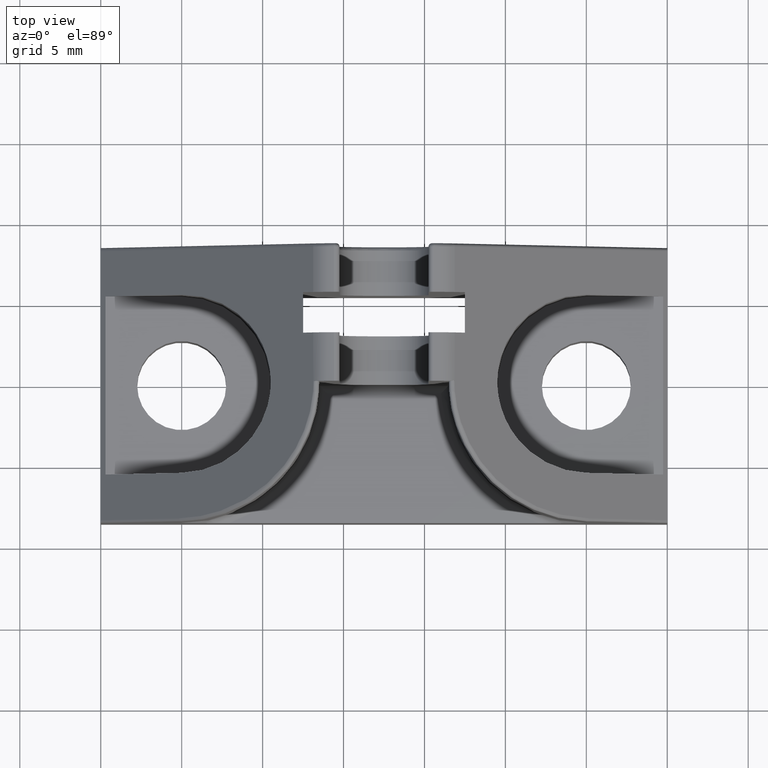
[diagram: clean part render]
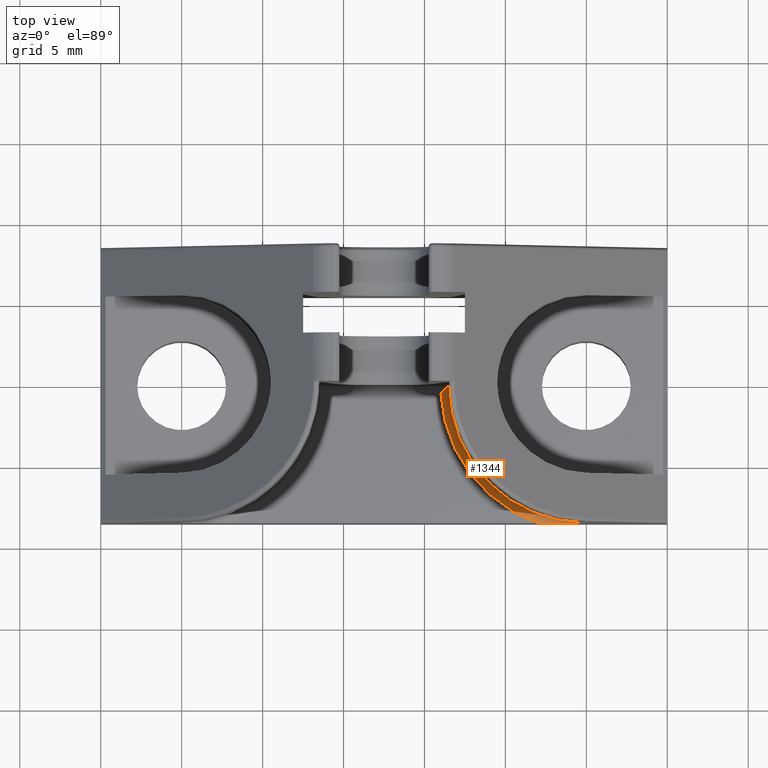
[diagram: same view with one face highlighted and labeled with its STEP entity id]
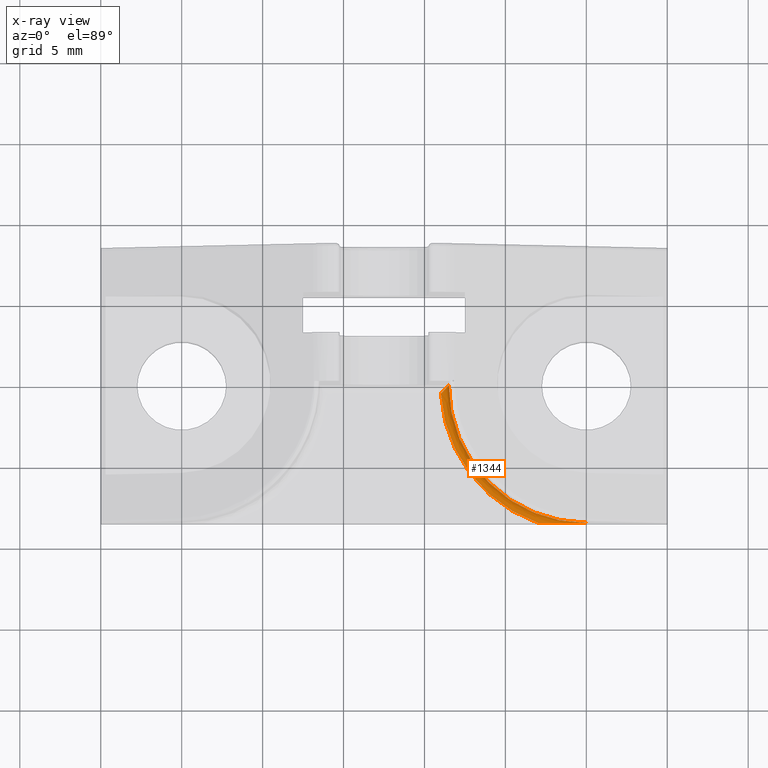
[diagram: x-ray of the same camera — body ghosted, the highlighted face saturated]
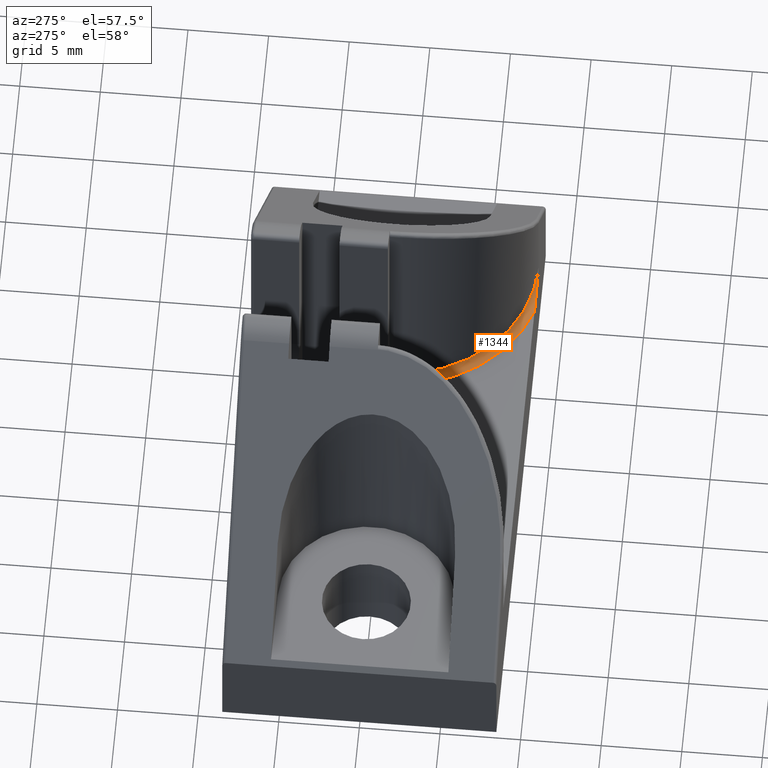
[diagram: same view with one face highlighted and labeled with its STEP entity id]
A machine part, top view. The second image highlights one B-rep face of the part: STEP entity #1344.
The next image is the same camera in x-ray: the body ghosted, the highlighted face saturated — about 0% of this face is hidden behind the body in this view.
A second angle (auxiliary view) of the same face is appended — the face is thin or edge-on in the first view.
In plain terms, the highlighted face is a freeform B-spline surface patch.
Its self-contained STEP definition (entity closure, byte-faithful):
#25=B_SPLINE_CURVE_WITH_KNOTS('',3,(#3533,#3534,#3535,#3536,#3537,#3538,
#3539,#3540,#3541,#3542,#3543,#3544,#3545,#3546),.UNSPECIFIED.,.F.,.F.,
(4,2,2,2,2,2,4),(0.,0.0121641494169023,0.024956855737419,0.0449819690582502,
0.0632214763117371,0.0822565105837484,0.0826002543865614),.UNSPECIFIED.);
#26=B_SPLINE_CURVE_WITH_KNOTS('',3,(#3550,#3551,#3552,#3553,#3554,#3555,
#3556,#3557),.UNSPECIFIED.,.F.,.F.,(4,2,2,4),(1.6276811354298E-7,0.155861946035354,
0.347908688580062,0.349710646436989),.UNSPECIFIED.);
#40=B_SPLINE_SURFACE_WITH_KNOTS('',3,3,((#3454,#3455,#3456,#3457,#3458,
#3459,#3460,#3461,#3462,#3463,#3464),(#3465,#3466,#3467,#3468,#3469,#3470,
#3471,#3472,#3473,#3474,#3475),(#3476,#3477,#3478,#3479,#3480,#3481,#3482,
#3483,#3484,#3485,#3486),(#3487,#3488,#3489,#3490,#3491,#3492,#3493,#3494,
#3495,#3496,#3497),(#3498,#3499,#3500,#3501,#3502,#3503,#3504,#3505,#3506,
#3507,#3508),(#3509,#3510,#3511,#3512,#3513,#3514,#3515,#3516,#3517,#3518,
#3519),(#3520,#3521,#3522,#3523,#3524,#3525,#3526,#3527,#3528,#3529,#3530)),
 .UNSPECIFIED.,.F.,.F.,.F.,(4,1,1,1,4),(4,1,1,1,1,1,1,1,4),(-0.000161642979281006,
0.195090322016129,0.390180644032257,0.585270966048386,0.780361288064515),
(0.,1.70521702967249,3.41043405934499,5.11565108901749,6.82086811868998,
8.52608514836247,10.231302178035,11.9365192077075,13.64173623738),
 .UNSPECIFIED.);
#135=FACE_OUTER_BOUND('',#219,.T.);
#219=EDGE_LOOP('',(#1081,#1082,#1083,#1084));
#300=CIRCLE('',#1484,8.9998999999657);
#301=CIRCLE('',#1485,8.49989999996569);
#622=VERTEX_POINT('',#3531);
#623=VERTEX_POINT('',#3532);
#624=VERTEX_POINT('',#3547);
#625=VERTEX_POINT('',#3549);
#789=EDGE_CURVE('',#622,#623,#25,.T.);
#790=EDGE_CURVE('',#624,#623,#300,.T.);
#791=EDGE_CURVE('',#624,#625,#26,.T.);
#792=EDGE_CURVE('',#625,#622,#301,.T.);
#1081=ORIENTED_EDGE('',*,*,#789,.T.);
#1082=ORIENTED_EDGE('',*,*,#790,.F.);
#1083=ORIENTED_EDGE('',*,*,#791,.T.);
#1084=ORIENTED_EDGE('',*,*,#792,.T.);
#1344=ADVANCED_FACE('',(#135),#40,.T.);
#1484=AXIS2_PLACEMENT_3D('',#3548,#1783,#1784);
#1485=AXIS2_PLACEMENT_3D('',#3558,#1785,#1786);
#1783=DIRECTION('center_axis',(0.,0.,-1.));
#1784=DIRECTION('ref_axis',(-0.999999999982699,5.882422158E-6,0.));
#1785=DIRECTION('center_axis',(0.,0.,-1.));
#1786=DIRECTION('ref_axis',(-0.999999999982699,5.882422158E-6,0.));
#3454=CARTESIAN_POINT('Ctrl Pts',(5.53318938835607E-16,-9.00006164147568,
5.99999808002071));
#3455=CARTESIAN_POINT('Ctrl Pts',(-0.588109065226064,-9.00006164147568,
5.99999808002071));
#3456=CARTESIAN_POINT('Ctrl Pts',(-1.76758660741093,-8.88402865972485,5.99999808002071));
#3457=CARTESIAN_POINT('Ctrl Pts',(-3.46627176269268,-8.36856736644411,5.99999808002071));
#3458=CARTESIAN_POINT('Ctrl Pts',(-5.03244659280965,-7.53150793570824,5.99999808002071));
#3459=CARTESIAN_POINT('Ctrl Pts',(-6.40503897061588,-6.40500129358354,5.99999808002071));
#3460=CARTESIAN_POINT('Ctrl Pts',(-7.53153753855328,-5.03240228921342,5.99999808002071));
#3461=CARTESIAN_POINT('Ctrl Pts',(-8.36858775637314,-3.4662225351866,5.99999808002071));
#3462=CARTESIAN_POINT('Ctrl Pts',(-8.88403905726178,-1.76753434777331,5.99999808002071));
#3463=CARTESIAN_POINT('Ctrl Pts',(-9.00006510082577,-0.58805612305387,5.99999808002071));
#3464=CARTESIAN_POINT('Ctrl Pts',(-9.00006164131997,5.29421620205991E-5,
5.99999808002071));
#3465=CARTESIAN_POINT('Ctrl Pts',(5.49317199081962E-16,-8.93497883768313,
5.99997650300959));
#3466=CARTESIAN_POINT('Ctrl Pts',(-0.583856229142772,-8.93497883768313,
5.99997650300959));
#3467=CARTESIAN_POINT('Ctrl Pts',(-1.75480452913868,-8.81978493371706,5.99997650300959));
#3468=CARTESIAN_POINT('Ctrl Pts',(-3.44120585825671,-8.30805113337466,5.99997650300959));
#3469=CARTESIAN_POINT('Ctrl Pts',(-4.99605509381292,-7.47704479170234,5.99997650300959));
#3470=CARTESIAN_POINT('Ctrl Pts',(-6.35872174399966,-6.35868433942399,5.99997650300959));
#3471=CARTESIAN_POINT('Ctrl Pts',(-7.47707418047816,-4.99601111059252,5.99997650300959));
#3472=CARTESIAN_POINT('Ctrl Pts',(-8.3080713758565,-3.44115698673311,5.99997650300959));
#3473=CARTESIAN_POINT('Ctrl Pts',(-8.81979525606551,-1.75475264740999,5.99997650300959));
#3474=CARTESIAN_POINT('Ctrl Pts',(-8.93498227201737,-0.583803669815177,
5.99997650300959));
#3475=CARTESIAN_POINT('Ctrl Pts',(-8.93497883752855,5.25593174938128E-5,
5.99997650300959));
#3476=CARTESIAN_POINT('Ctrl Pts',(5.41228322719734E-16,-8.80343199115925,
6.02598670904733));
#3477=CARTESIAN_POINT('Ctrl Pts',(-0.575260299912012,-8.80343199115925,
6.02598670904733));
#3478=CARTESIAN_POINT('Ctrl Pts',(-1.72896910117992,-8.68993405033767,6.02598670904733));
#3479=CARTESIAN_POINT('Ctrl Pts',(-3.39054208085816,-8.18573434368676,6.02598670904733));
#3480=CARTESIAN_POINT('Ctrl Pts',(-4.92249976653236,-7.3669626436039,6.02598670904733));
#3481=CARTESIAN_POINT('Ctrl Pts',(-6.2651043098074,-6.26506745592739,6.02598670904733));
#3482=CARTESIAN_POINT('Ctrl Pts',(-7.36699159969814,-4.9224564308629,6.02598670904733));
#3483=CARTESIAN_POINT('Ctrl Pts',(-8.185754288145,-3.39049392885442,6.02598670904733));
#3484=CARTESIAN_POINT('Ctrl Pts',(-8.68994422071347,-1.72891798328939,6.02598670904733));
#3485=CARTESIAN_POINT('Ctrl Pts',(-8.80343537493087,-0.575208514398652,
6.02598670904733));
#3486=CARTESIAN_POINT('Ctrl Pts',(-8.80343199100694,5.1785503408384E-5,
6.02598670904733));
#3487=CARTESIAN_POINT('Ctrl Pts',(5.310051E-16,-8.63719354422922,6.13729159749012));
#3488=CARTESIAN_POINT('Ctrl Pts',(-0.564397447909076,-8.63719354422922,
6.13729159749012));
#3489=CARTESIAN_POINT('Ctrl Pts',(-1.69632034118963,-8.52583882680401,6.13729159749012));
#3490=CARTESIAN_POINT('Ctrl Pts',(-3.32651722664916,-8.03116010881531,6.13729159749012));
#3491=CARTESIAN_POINT('Ctrl Pts',(-4.82954639141416,-7.22784957614406,6.13729159749012));
#3492=CARTESIAN_POINT('Ctrl Pts',(-6.14679803887091,-6.14676188091628,6.13729159749011));
#3493=CARTESIAN_POINT('Ctrl Pts',(-7.2278779854497,-4.8295038740681,6.13729159749012));
#3494=CARTESIAN_POINT('Ctrl Pts',(-8.03117967665501,-3.32646998391744,6.13729159749011));
#3495=CARTESIAN_POINT('Ctrl Pts',(-8.52584880512886,-1.69627018857705,6.13729159749011));
#3496=CARTESIAN_POINT('Ctrl Pts',(-8.63719686410383,-0.564346640280627,
6.13729159749012));
#3497=CARTESIAN_POINT('Ctrl Pts',(-8.63719354407978,5.0807618685E-5,6.13729159749012));
#3498=CARTESIAN_POINT('Ctrl Pts',(5.241609E-16,-8.52591938802358,6.30348414455495));
#3499=CARTESIAN_POINT('Ctrl Pts',(-0.5571262377111,-8.52591938802358,6.30348414455496));
#3500=CARTESIAN_POINT('Ctrl Pts',(-1.67446641217279,-8.41599926878789,6.30348414455496));
#3501=CARTESIAN_POINT('Ctrl Pts',(-3.28366124621948,-7.92769356497969,6.30348414455495));
#3502=CARTESIAN_POINT('Ctrl Pts',(-4.76732667886417,-7.13473219274305,6.30348414455496));
#3503=CARTESIAN_POINT('Ctrl Pts',(-6.06760799159001,-6.0675722994633,6.30348414455495));
#3504=CARTESIAN_POINT('Ctrl Pts',(-7.1347602360477,-4.76728470927494,6.30348414455496));
#3505=CARTESIAN_POINT('Ctrl Pts',(-7.9277128807242,-3.28361461212238,6.30348414455495));
#3506=CARTESIAN_POINT('Ctrl Pts',(-8.41600911856061,-1.67441690568324,6.30348414455495));
#3507=CARTESIAN_POINT('Ctrl Pts',(-8.5259226651278,-0.557076084644338,6.30348414455496));
#3508=CARTESIAN_POINT('Ctrl Pts',(-8.52591938787607,5.0153057123E-5,6.30348414455496));
#3509=CARTESIAN_POINT('Ctrl Pts',(5.225592E-16,-8.49989999996569,6.43496794588788));
#3510=CARTESIAN_POINT('Ctrl Pts',(-0.555426000690726,-8.49989999996569,
6.43496794588788));
#3511=CARTESIAN_POINT('Ctrl Pts',(-1.66935627807635,-8.39031533478576,6.43496794588788));
#3512=CARTESIAN_POINT('Ctrl Pts',(-3.27364017373127,-7.90349984159532,6.43496794588788));
#3513=CARTESIAN_POINT('Ctrl Pts',(-4.75277775842394,-7.11295842769046,6.43496794588788));
#3514=CARTESIAN_POINT('Ctrl Pts',(-6.04909087458113,-6.0490552913796,6.43496794588788));
#3515=CARTESIAN_POINT('Ctrl Pts',(-7.1129863854126,-4.75273591691745,6.43496794588788));
#3516=CARTESIAN_POINT('Ctrl Pts',(-7.90351909839207,-3.27359368195204,6.43496794588788));
#3517=CARTESIAN_POINT('Ctrl Pts',(-8.39032515449895,-1.66930692267063,6.43496794588788));
#3518=CARTESIAN_POINT('Ctrl Pts',(-8.49990326706885,-0.555376000681019,
6.43496794588788));
#3519=CARTESIAN_POINT('Ctrl Pts',(-8.49989999981863,5.0000000098E-5,6.43496794588788));
#3520=CARTESIAN_POINT('Ctrl Pts',(5.225583E-16,-8.49989999996569,6.49999805322659));
#3521=CARTESIAN_POINT('Ctrl Pts',(-0.555426000690726,-8.49989999996569,
6.49999805322659));
#3522=CARTESIAN_POINT('Ctrl Pts',(-1.66935627807635,-8.39031533478576,6.49999805322659));
#3523=CARTESIAN_POINT('Ctrl Pts',(-3.27364017373127,-7.90349984159532,6.49999805322659));
#3524=CARTESIAN_POINT('Ctrl Pts',(-4.75277775842394,-7.11295842769046,6.49999805322659));
#3525=CARTESIAN_POINT('Ctrl Pts',(-6.04909087458113,-6.0490552913796,6.49999805322659));
#3526=CARTESIAN_POINT('Ctrl Pts',(-7.1129863854126,-4.75273591691745,6.49999805322659));
#3527=CARTESIAN_POINT('Ctrl Pts',(-7.90351909839207,-3.27359368195204,6.49999805322659));
#3528=CARTESIAN_POINT('Ctrl Pts',(-8.39032515449895,-1.66930692267063,6.49999805322659));
#3529=CARTESIAN_POINT('Ctrl Pts',(-8.49990326706885,-0.555376000681019,
6.49999805322659));
#3530=CARTESIAN_POINT('Ctrl Pts',(-8.49989999981863,5.0000000098E-5,6.49999805322659));
#3531=CARTESIAN_POINT('',(-8.49989999981881,5.0000000102E-5,6.49999805322659));
#3532=CARTESIAN_POINT('',(-8.98597869743478,-0.499950673217698,5.99999805322659));
#3533=CARTESIAN_POINT('Ctrl Pts',(-8.49989999981863,5.00000001033649E-5,
6.49999805322659));
#3534=CARTESIAN_POINT('Ctrl Pts',(-8.49989999981863,5.00000001033624E-5,
6.45945088850358));
#3535=CARTESIAN_POINT('Ctrl Pts',(-8.50493345228377,-0.00489767846461354,
6.41948632611635));
#3536=CARTESIAN_POINT('Ctrl Pts',(-8.52412612166341,-0.0241551927090525,
6.34080159299644));
#3537=CARTESIAN_POINT('Ctrl Pts',(-8.53849529050971,-0.0386284874947541,
6.30328149838373));
#3538=CARTESIAN_POINT('Ctrl Pts',(-8.58439782792097,-0.084804149172229,
6.21475073586606));
#3539=CARTESIAN_POINT('Ctrl Pts',(-8.62318574413754,-0.124008128868655,
6.16366592305031));
#3540=CARTESIAN_POINT('Ctrl Pts',(-8.71813198405733,-0.220834176648984,
6.08072789947557));
#3541=CARTESIAN_POINT('Ctrl Pts',(-8.7678592168756,-0.272128563984355,6.05133782269653));
#3542=CARTESIAN_POINT('Ctrl Pts',(-8.87254910907551,-0.380411578621106,
6.01092313231438));
#3543=CARTESIAN_POINT('Ctrl Pts',(-8.92857053854155,-0.438530563442781,
6.00037592299169));
#3544=CARTESIAN_POINT('Ctrl Pts',(-8.98398930382881,-0.497844898193395,
6.00000137767597));
#3545=CARTESIAN_POINT('Ctrl Pts',(-8.98497205359813,-0.498897313003463,
5.99999805322659));
#3546=CARTESIAN_POINT('Ctrl Pts',(-8.98595450306812,-0.499949999999897,
5.99999805322659));
#3547=CARTESIAN_POINT('',(-2.95802298841045,-8.4998999999657,5.99999805322659));
#3548=CARTESIAN_POINT('Origin',(0.,3.673939E-16,5.99999805322659));
#3549=CARTESIAN_POINT('',(0.,-8.49989999996569,6.49999805322659));
#3550=CARTESIAN_POINT('Ctrl Pts',(-2.95802298841045,-8.49989999996569,5.99999805322688));
#3551=CARTESIAN_POINT('Ctrl Pts',(-2.43848346904033,-8.49989999996569,5.99999824056653));
#3552=CARTESIAN_POINT('Ctrl Pts',(-1.87753001558173,-8.49989999996569,6.08965950583886));
#3553=CARTESIAN_POINT('Ctrl Pts',(-0.959411997240422,-8.49989999996569,
6.26599071573776));
#3554=CARTESIAN_POINT('Ctrl Pts',(-0.46114356644016,-8.49989999996569,6.38912812809151));
#3555=CARTESIAN_POINT('Ctrl Pts',(-0.0084169980667521,-8.49989999996569,
6.49797530940379));
#3556=CARTESIAN_POINT('Ctrl Pts',(-0.00420854792744082,-8.49989999996569,
6.498986830328));
#3557=CARTESIAN_POINT('Ctrl Pts',(2.9374312606544E-15,-8.49989999996569,
6.49999805322658));
#3558=CARTESIAN_POINT('Origin',(0.,3.980101E-16,6.49999805322659));